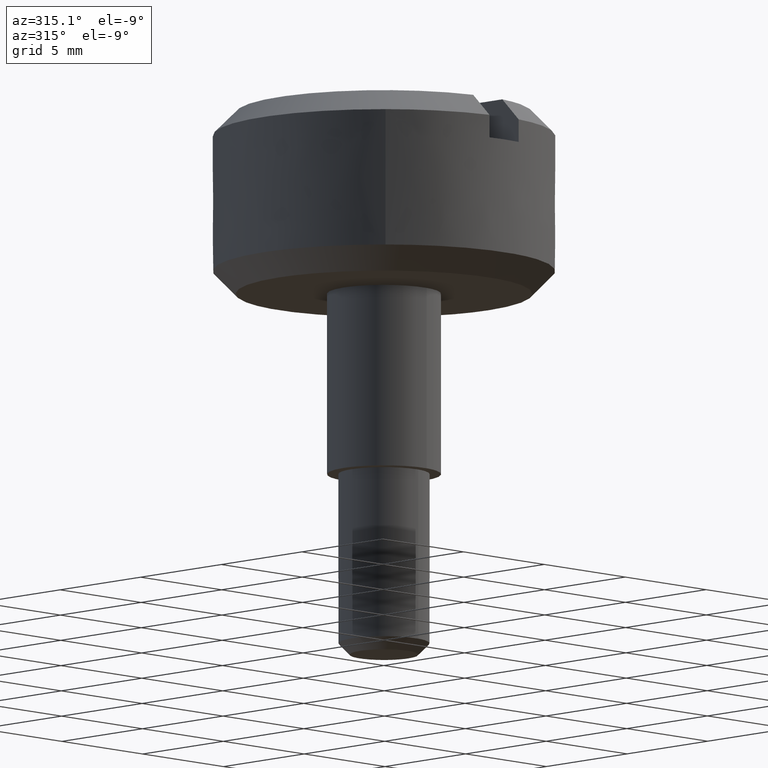
[diagram: clean part render]
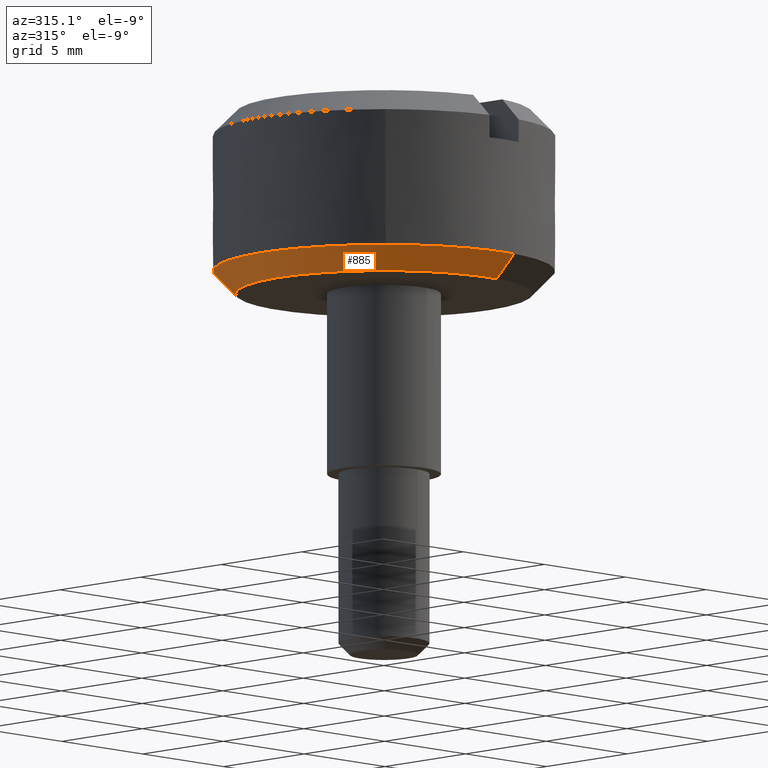
[diagram: same view with one face highlighted and labeled with its STEP entity id]
A machine part, auxiliary view. The second image highlights one B-rep face of the part: STEP entity #885.
In plain terms, the highlighted face is a freeform B-spline surface patch.
Its self-contained STEP definition (entity closure, byte-faithful):
#542=CARTESIAN_POINT('',(-6.500000000000021,0.0,-2.188472E-012));
#543=VERTEX_POINT('',#542);
#544=CARTESIAN_POINT('',(-0.509984122261655,6.479962669266916,1.796362E-012));
#545=VERTEX_POINT('',#544);
#546=CARTESIAN_POINT('',(-6.500000000000021,0.0,-2.188472E-012));
#547=CARTESIAN_POINT('',(-6.500000000000178,6.008538195752123,-1.960550E-013));
#548=CARTESIAN_POINT('',(-0.509984122261655,6.479962669266916,1.796362E-012));
#556=(BOUNDED_CURVE()B_SPLINE_CURVE(2,(#546,#547,#548),.UNSPECIFIED.,.F.,.U.)B_SPLINE_CURVE_WITH_KNOTS((3,3),(0.0,0.236331300631965),.UNSPECIFIED.)CURVE()GEOMETRIC_REPRESENTATION_ITEM()RATIONAL_B_SPLINE_CURVE((1.0,0.723120658606137,0.969723356170141))REPRESENTATION_ITEM(''));
#557=EDGE_CURVE('',#543,#545,#556,.T.);
#576=CARTESIAN_POINT('',(0.509984122261611,-6.479962669266918,1.801544E-012));
#577=VERTEX_POINT('',#576);
#591=CARTESIAN_POINT('',(0.509984122261611,-6.479962669266918,1.801544E-012));
#592=CARTESIAN_POINT('',(0.255385695565373,-6.500000000003900,1.722463E-012));
#593=CARTESIAN_POINT('',(2.808920E-013,-6.500000000003823,1.644211E-012));
#594=CARTESIAN_POINT('',(-6.499999999999876,-6.500000000001837,-3.474234E-013));
#595=CARTESIAN_POINT('',(-6.500000000000021,0.0,-2.188472E-012));
#603=(BOUNDED_CURVE()B_SPLINE_CURVE(2,(#591,#592,#593,#594,#595),.UNSPECIFIED.,.F.,.U.)B_SPLINE_CURVE_WITH_KNOTS((3,2,3),(0.736331300631965,0.750000000000000,1.0),.UNSPECIFIED.)CURVE()GEOMETRIC_REPRESENTATION_ITEM()RATIONAL_B_SPLINE_CURVE((0.969723356170141,0.983986122580411,1.0,0.707106781186547,1.0))REPRESENTATION_ITEM(''));
#604=EDGE_CURVE('',#577,#543,#603,.T.);
#804=CARTESIAN_POINT('',(-0.508022644837821,6.455039735922002,-0.025000000002170));
#805=CARTESIAN_POINT('',(-6.963062380759823,5.947017091084201,-0.025000000002170));
#806=CARTESIAN_POINT('',(-6.455039735922023,-0.508022644837800,-0.025000000002170));
#807=CARTESIAN_POINT('',(-5.947017091084223,-6.963062380759801,-0.025000000002170));
#808=CARTESIAN_POINT('',(0.508022644837779,-6.455039735922002,-0.025000000002170));
#809=CARTESIAN_POINT('',(-0.590453732286889,7.502426009675369,1.025624999997053));
#810=CARTESIAN_POINT('',(-8.092879741962257,6.911972277388501,1.025624999997053));
#811=CARTESIAN_POINT('',(-7.502426009675390,-0.590453732286868,1.025624999997053));
#812=CARTESIAN_POINT('',(-6.911972277388522,-8.092879741962236,1.025624999997053));
#813=CARTESIAN_POINT('',(0.590453732286846,-7.502426009675369,1.025624999997053));
#821=(BOUNDED_SURFACE()B_SPLINE_SURFACE(2,1,((#804,#809),(#805,#810),(#806,#811),(#807,#812),(#808,#813)),.UNSPECIFIED.,.F.,.F.,.U.)B_SPLINE_SURFACE_WITH_KNOTS((3,2,3),(2,2),(0.0,12.468863761336090,24.937727522672180),(0.0,1.0),.UNSPECIFIED.)GEOMETRIC_REPRESENTATION_ITEM()RATIONAL_B_SPLINE_SURFACE(((1.0,1.0),(0.707106781186548,0.707106781186548),(1.0,1.0),(0.707106781186548,0.707106781186548),(1.0,1.0)))REPRESENTATION_ITEM('')SURFACE());
#822=CARTESIAN_POINT('',(-7.500000000000021,0.0,0.999999999997072));
#823=VERTEX_POINT('',#822);
#824=CARTESIAN_POINT('',(-0.588443217979856,7.476880002999542,0.999999999999799));
#825=VERTEX_POINT('',#824);
#826=CARTESIAN_POINT('',(-7.500000000000021,0.0,0.999999999997072));
#827=CARTESIAN_POINT('',(-7.500000000000129,6.932928687418583,0.999999999998435));
#828=CARTESIAN_POINT('',(-0.588443217979856,7.476880002999542,0.999999999999799));
#836=(BOUNDED_CURVE()B_SPLINE_CURVE(2,(#826,#827,#828),.UNSPECIFIED.,.F.,.U.)B_SPLINE_CURVE_WITH_KNOTS((3,3),(0.0,0.236331300632290),.UNSPECIFIED.)CURVE()GEOMETRIC_REPRESENTATION_ITEM()RATIONAL_B_SPLINE_CURVE((1.0,0.723120658605755,0.969723356170821))REPRESENTATION_ITEM(''));
#837=EDGE_CURVE('',#823,#825,#836,.T.);
#838=ORIENTED_EDGE('',*,*,#837,.T.);
#839=CARTESIAN_POINT('',(-0.509984122261655,6.479962669266916,1.796362E-012));
#840=CARTESIAN_POINT('',(-0.588443217979856,7.476880002999542,0.999999999999799));
#841=QUASI_UNIFORM_CURVE('',1,(#839,#840),.UNSPECIFIED.,.F.,.U.);
#842=EDGE_CURVE('',#545,#825,#841,.T.);
#843=ORIENTED_EDGE('',*,*,#842,.F.);
#844=ORIENTED_EDGE('',*,*,#557,.F.);
#845=ORIENTED_EDGE('',*,*,#604,.F.);
#846=CARTESIAN_POINT('',(0.588443217979813,-7.476880002999541,0.999999999999799));
#847=VERTEX_POINT('',#846);
#848=CARTESIAN_POINT('',(0.509984122261611,-6.479962669266918,1.801544E-012));
#849=CARTESIAN_POINT('',(0.588443217979813,-7.476880002999541,0.999999999999799));
#850=QUASI_UNIFORM_CURVE('',1,(#848,#849),.UNSPECIFIED.,.F.,.U.);
#851=EDGE_CURVE('',#577,#847,#850,.T.);
#852=ORIENTED_EDGE('',*,*,#851,.T.);
#853=CARTESIAN_POINT('',(-5.246736314149771,-5.359268424867546,0.999999999997070));
#854=VERTEX_POINT('',#853);
#855=CARTESIAN_POINT('',(0.588443217979813,-7.476880002999541,0.999999999999799));
#856=CARTESIAN_POINT('',(0.294675802568145,-7.500000000002600,0.999999999999681));
#857=CARTESIAN_POINT('',(1.725384E-013,-7.500000000002478,0.999999999999559));
#858=CARTESIAN_POINT('',(-3.060090283209675,-7.500000000001217,0.999999999998295));
#859=CARTESIAN_POINT('',(-5.246736314149771,-5.359268424867546,0.999999999997070));
#867=(BOUNDED_CURVE()B_SPLINE_CURVE(2,(#855,#856,#857,#858,#859),.UNSPECIFIED.,.F.,.U.)B_SPLINE_CURVE_WITH_KNOTS((3,2,3),(0.736331300632290,0.750000000000000,0.873399085536409),.UNSPECIFIED.)CURVE()GEOMETRIC_REPRESENTATION_ITEM()RATIONAL_B_SPLINE_CURVE((0.969723356170821,0.983986122580792,1.0,0.855428978554418,0.853577411840432))REPRESENTATION_ITEM(''));
#868=EDGE_CURVE('',#847,#854,#867,.T.);
#869=ORIENTED_EDGE('',*,*,#868,.T.);
#870=CARTESIAN_POINT('',(-5.246736314149776,-5.359268424867546,0.999999999997072));
#871=CARTESIAN_POINT('',(-7.500000000000022,-3.153318009872685,0.999999999997072));
#872=CARTESIAN_POINT('',(-7.500000000000021,0.0,0.999999999997072));
#880=(BOUNDED_CURVE()B_SPLINE_CURVE(2,(#870,#871,#872),.UNSPECIFIED.,.F.,.U.)B_SPLINE_CURVE_WITH_KNOTS((3,3),(0.873399085536409,1.0),.UNSPECIFIED.)CURVE()GEOMETRIC_REPRESENTATION_ITEM()RATIONAL_B_SPLINE_CURVE((0.853577411840432,0.851677802632129,1.0))REPRESENTATION_ITEM(''));
#881=EDGE_CURVE('',#854,#823,#880,.T.);
#882=ORIENTED_EDGE('',*,*,#881,.T.);
#883=EDGE_LOOP('',(#838,#843,#844,#845,#852,#869,#882));
#884=FACE_OUTER_BOUND('',#883,.T.);
#885=ADVANCED_FACE('',(#884),#821,.T.);